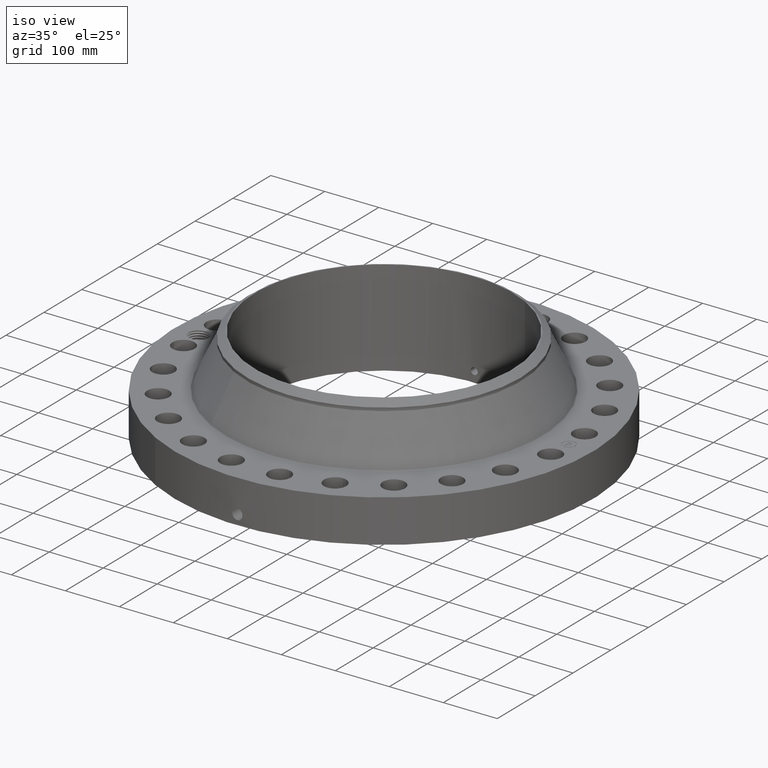
[diagram: clean part render]
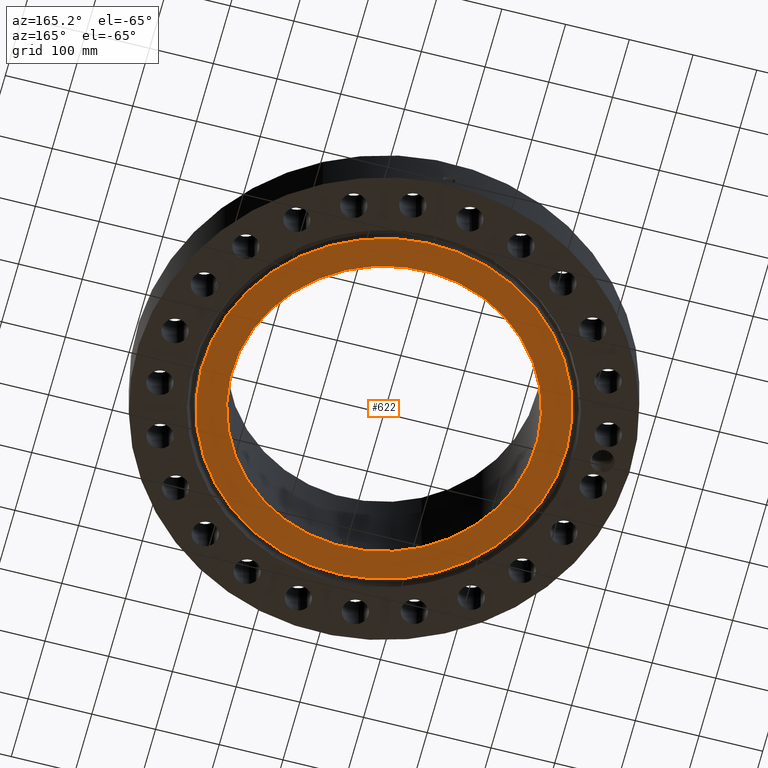
[diagram: tour spotlight — one face highlighted and labeled with its STEP entity id]
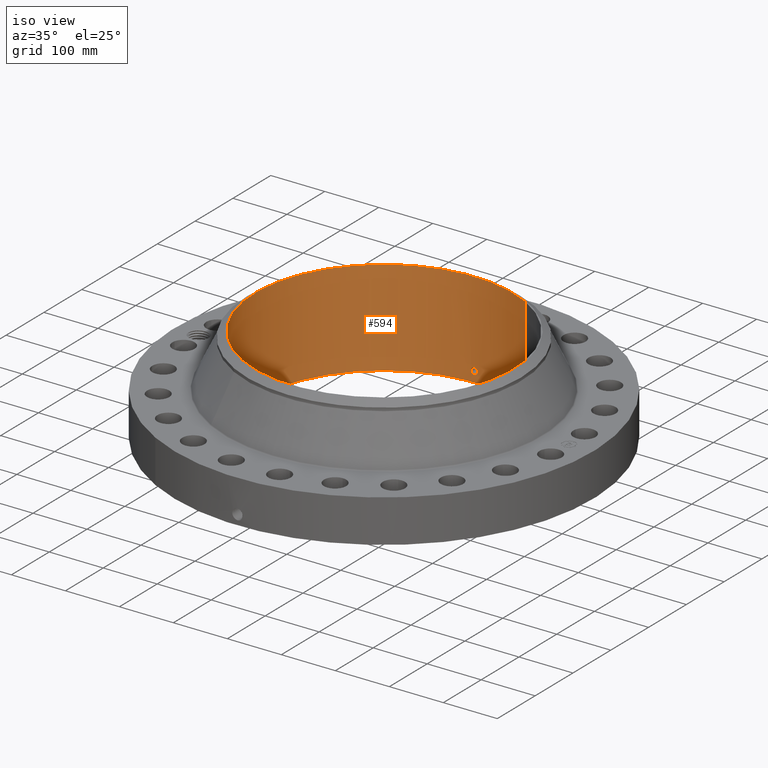
[diagram: tour spotlight — one face highlighted and labeled with its STEP entity id]
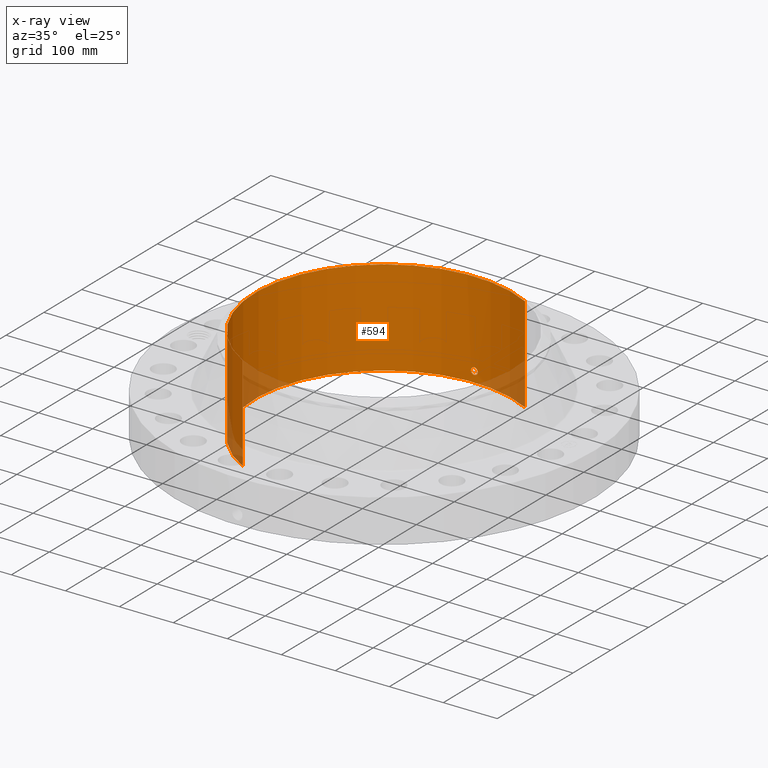
[diagram: x-ray of the same camera — body ghosted, this tour face saturated]
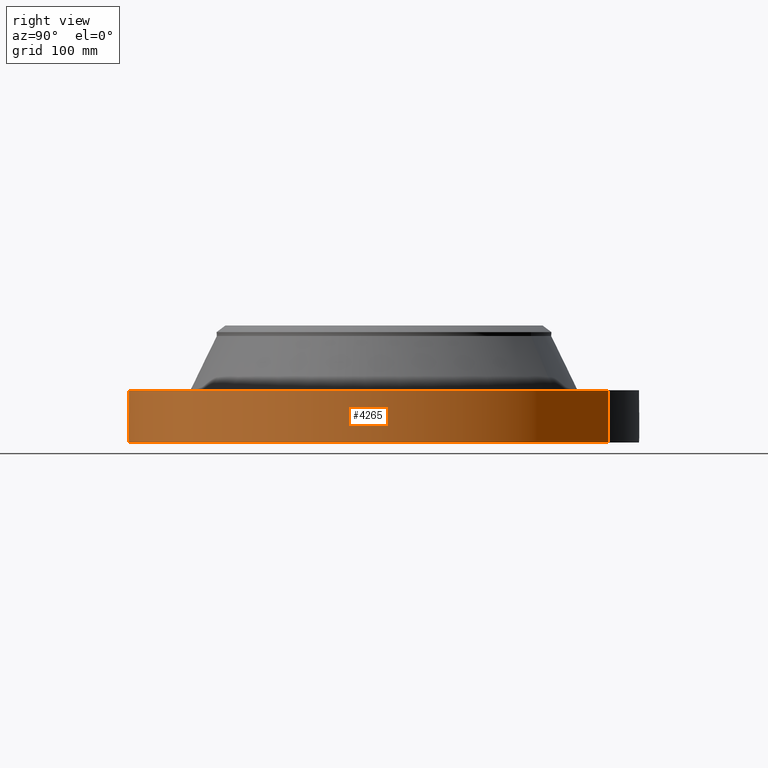
[diagram: tour spotlight — one face highlighted and labeled with its STEP entity id]
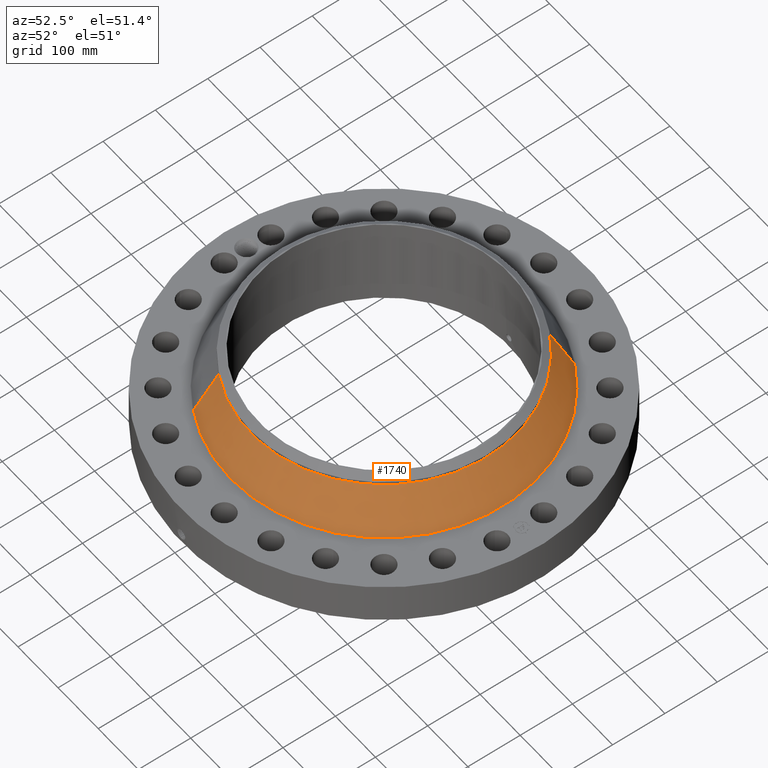
[diagram: tour spotlight — one face highlighted and labeled with its STEP entity id]
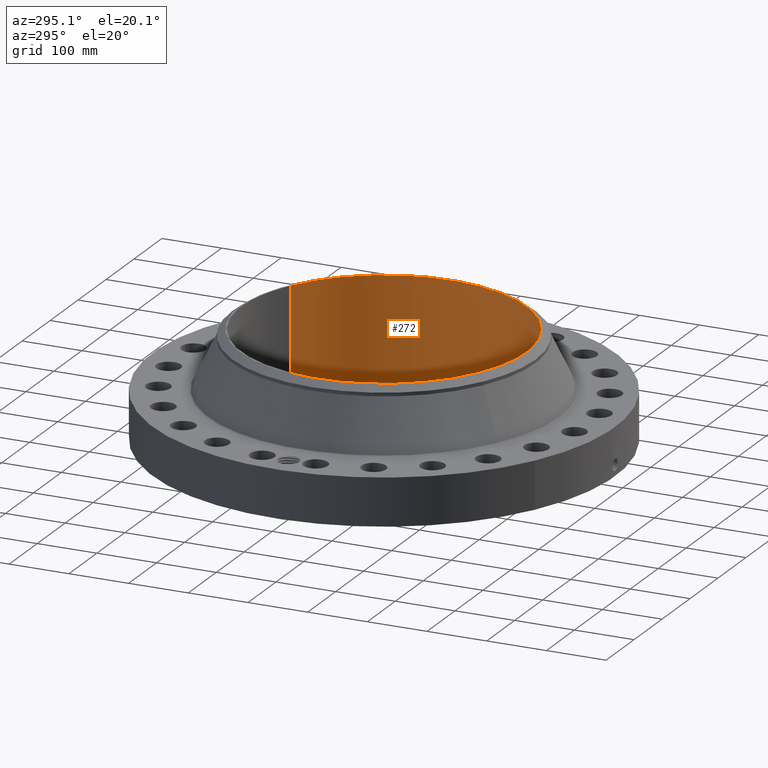
[diagram: tour spotlight — one face highlighted and labeled with its STEP entity id]
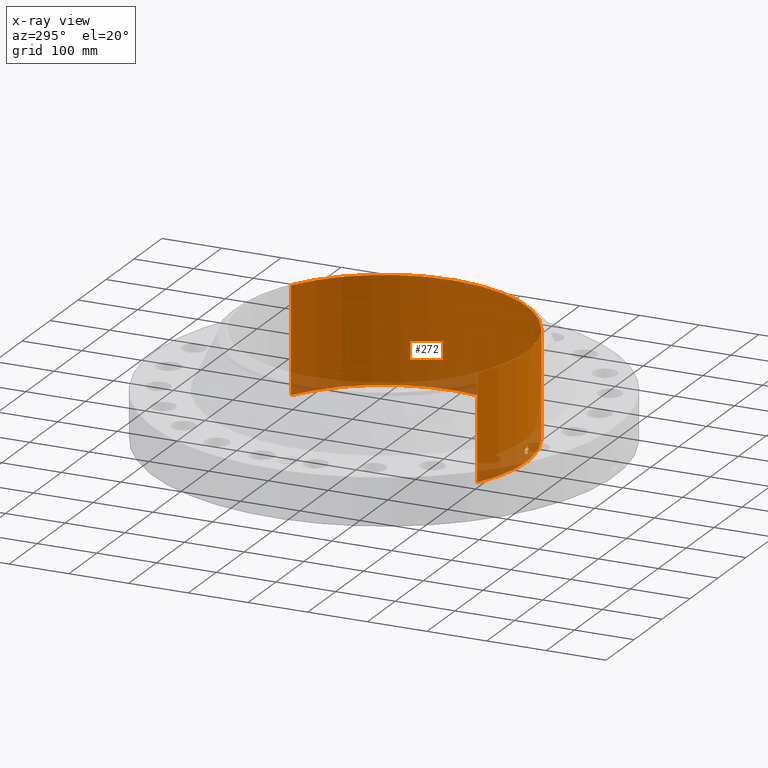
[diagram: x-ray of the same camera — body ghosted, this tour face saturated]
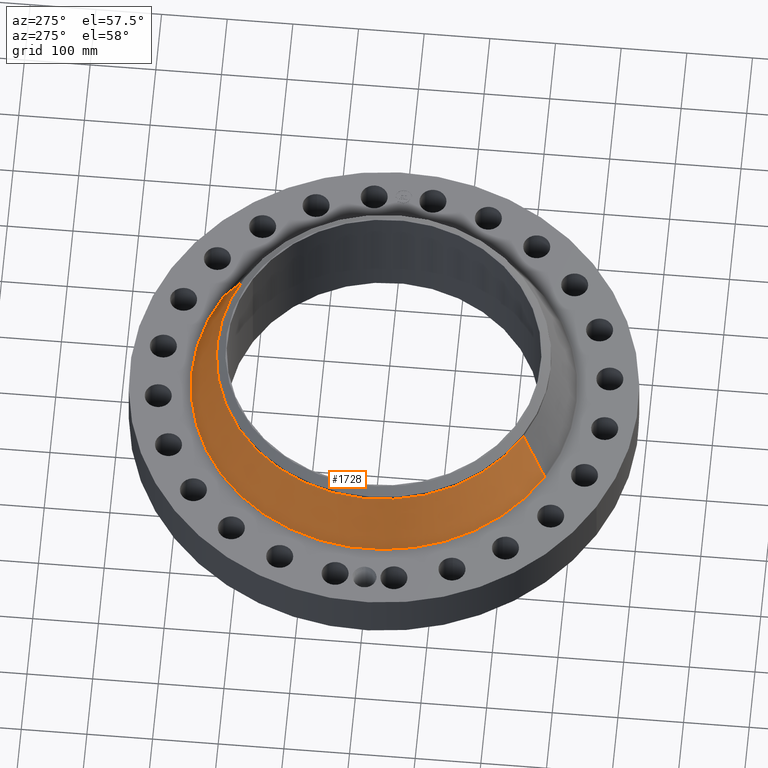
[diagram: tour spotlight — one face highlighted and labeled with its STEP entity id]
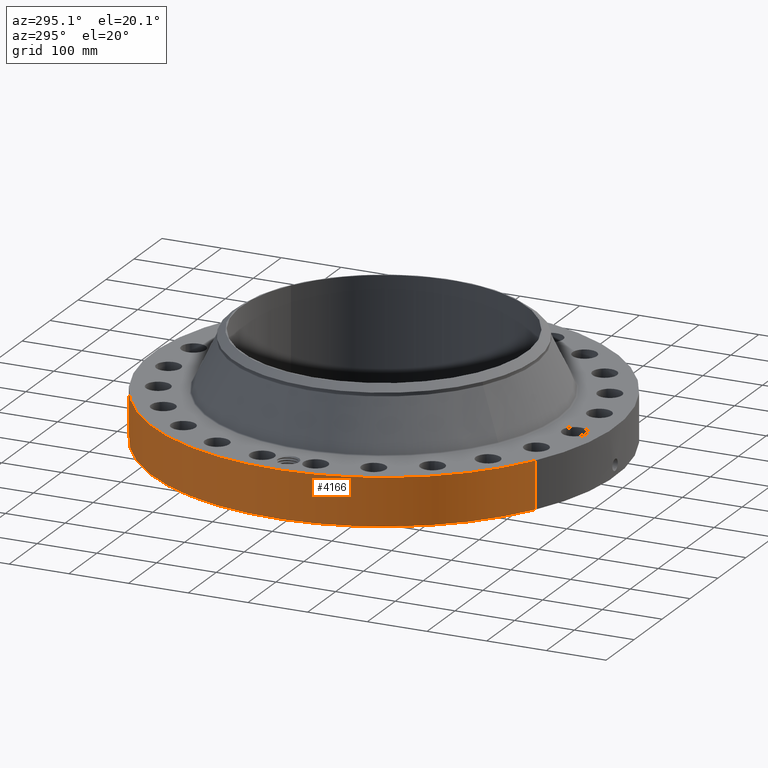
[diagram: tour spotlight — one face highlighted and labeled with its STEP entity id]
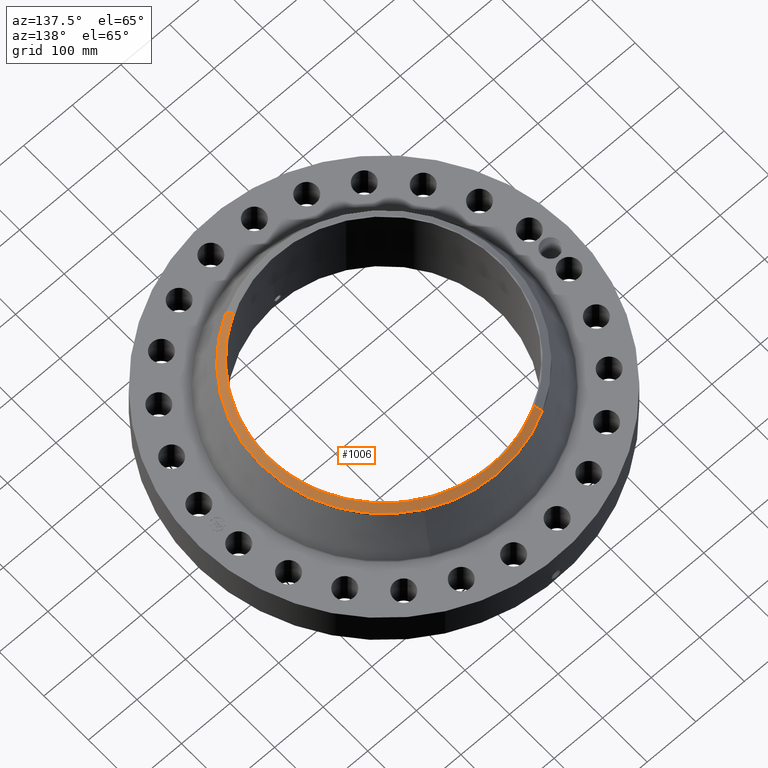
[diagram: tour spotlight — one face highlighted and labeled with its STEP entity id]
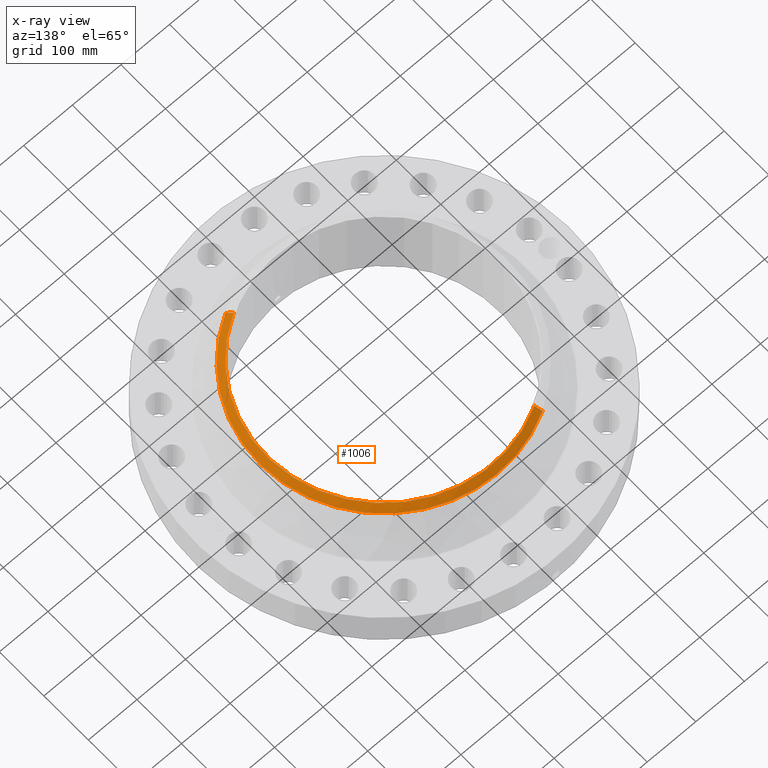
[diagram: x-ray of the same camera — body ghosted, this tour face saturated]
A machine part: a face-by-face anatomy tour. The part has 831 B-rep faces; the first image is the clean iso view, then the 8 largest visible faces are spotlighted one at a time (largest first), each with its STEP entity span.

Face 1 — auxiliary view, entity #622. In plain terms, the highlighted planar face has unit normal (0, 0, -1).
Definition (entity closure, byte-faithful):
#252=AXIS2_PLACEMENT_3D('Circle Axis2P3D',#250,#251,$) ;
#543=AXIS2_PLACEMENT_3D('Circle Axis2P3D',#541,#542,$) ;
#598=AXIS2_PLACEMENT_3D('Plane Axis2P3D',#595,#596,#597) ;
#602=AXIS2_PLACEMENT_3D('Circle Axis2P3D',#600,#601,$) ;
#611=AXIS2_PLACEMENT_3D('Circle Axis2P3D',#609,#610,$) ;
#247=CARTESIAN_POINT('Vertex',(4.50947661613,8.25454157717,-6.37810014777E-014)) ;
#250=CARTESIAN_POINT('Axis2P3D Location',(0.,0.,-6.37810014777E-014)) ;
#254=CARTESIAN_POINT('Vertex',(-4.50947661613,-8.25454157717,-6.37810014777E-014)) ;
#541=CARTESIAN_POINT('Axis2P3D Location',(0.,0.,-6.37810014777E-014)) ;
#595=CARTESIAN_POINT('Axis2P3D Location',(0.,9.40600000004,0.)) ;
#600=CARTESIAN_POINT('Axis2P3D Location',(1.1189649382E-015,-1.1189649382E-015,0.)) ;
#604=CARTESIAN_POINT('Vertex',(-5.38610621347,9.8592012916,3.40934629609E-016)) ;
#606=CARTESIAN_POINT('Vertex',(5.38610621347,-9.8592012916,0.)) ;
#609=CARTESIAN_POINT('Axis2P3D Location',(-3.35689481461E-015,2.23792987641E-015,0.)) ;
#251=DIRECTION('Axis2P3D Direction',(0.,0.,-0.0393700787402)) ;
#542=DIRECTION('Axis2P3D Direction',(0.,0.,-0.0393700787402)) ;
#596=DIRECTION('Axis2P3D Direction',(0.,0.,-0.0393700787402)) ;
#597=DIRECTION('Axis2P3D XDirection',(0.0393700787402,0.,0.)) ;
#601=DIRECTION('Axis2P3D Direction',(0.,0.,-0.0393700787402)) ;
#610=DIRECTION('Axis2P3D Direction',(0.,0.,-0.0393700787402)) ;
#615=ORIENTED_EDGE('',*,*,#608,.T.) ;
#616=ORIENTED_EDGE('',*,*,#613,.T.) ;
#619=ORIENTED_EDGE('',*,*,#256,.F.) ;
#620=ORIENTED_EDGE('',*,*,#545,.F.) ;
#621=FACE_BOUND('',#618,.T.) ;
#622=ADVANCED_FACE('PartBody',(#617,#621),#599,.T.) ;
#253=CIRCLE('generated circle',#252,9.40600000004) ;
#544=CIRCLE('generated circle',#543,9.40600000004) ;
#603=CIRCLE('generated circle',#602,11.2345) ;
#612=CIRCLE('generated circle',#611,11.2345) ;
#256=EDGE_CURVE('',#248,#255,#253,.T.) ;
#545=EDGE_CURVE('',#255,#248,#544,.T.) ;
#608=EDGE_CURVE('',#605,#607,#603,.T.) ;
#613=EDGE_CURVE('',#607,#605,#612,.T.) ;
#614=EDGE_LOOP('',(#615,#616)) ;
#618=EDGE_LOOP('',(#619,#620)) ;
#617=FACE_OUTER_BOUND('',#614,.T.) ;
#599=PLANE('',#598) ;
#248=VERTEX_POINT('',#247) ;
#255=VERTEX_POINT('',#254) ;
#605=VERTEX_POINT('',#604) ;
#607=VERTEX_POINT('',#606) ;

Face 2 — iso view, entity #594. An x-ray twin of the same camera follows (body ghosted, this face saturated) — the face is partly hidden behind the body. In plain terms, the highlighted cylindrical surface (partial cylindrical patch) has radius 238.912 mm, axis along (0, 0, -1).
Definition (entity closure, byte-faithful):
#232=AXIS2_PLACEMENT_3D('Cylinder Axis2P3D',#229,#230,#231) ;
#533=AXIS2_PLACEMENT_3D('Circle Axis2P3D',#531,#532,$) ;
#543=AXIS2_PLACEMENT_3D('Circle Axis2P3D',#541,#542,$) ;
#229=CARTESIAN_POINT('Axis2P3D Location',(0.,0.,3.49750000001)) ;
#238=CARTESIAN_POINT('Vertex',(4.50947661613,8.25454157717,6.99500000003)) ;
#240=CARTESIAN_POINT('Vertex',(-4.50947661613,-8.25454157717,6.99500000003)) ;
#243=CARTESIAN_POINT('Line Origine',(4.50947661613,8.25454157717,3.49750000001)) ;
#247=CARTESIAN_POINT('Vertex',(4.50947661613,8.25454157717,-6.37810014777E-014)) ;
#254=CARTESIAN_POINT('Vertex',(-4.50947661613,-8.25454157717,-6.37810014777E-014)) ;
#257=CARTESIAN_POINT('Line Origine',(-4.50947661613,-8.25454157717,3.49750000001)) ;
#531=CARTESIAN_POINT('Axis2P3D Location',(0.,0.,6.99500000003)) ;
#541=CARTESIAN_POINT('Axis2P3D Location',(0.,0.,-6.37810014777E-014)) ;
#553=CARTESIAN_POINT('Control Point',(0.219395640473,9.40344094221,0.869856384655)) ;
#554=CARTESIAN_POINT('Control Point',(0.194442950845,9.40402312392,0.915531976644)) ;
#555=CARTESIAN_POINT('Control Point',(0.157604939095,9.40479979489,0.954712022661)) ;
#556=CARTESIAN_POINT('Control Point',(0.111107152544,9.40555514884,0.983243448397)) ;
#557=CARTESIAN_POINT('Control Point',(0.033671999204,9.40615612692,1.00588278053)) ;
#558=CARTESIAN_POINT('Control Point',(-0.0446727871755,9.40594843691,0.998056138009)) ;
#559=CARTESIAN_POINT('Control Point',(-0.070303028828,9.40578720686,0.992043214285)) ;
#560=CARTESIAN_POINT('Control Point',(-0.143959762513,9.40507473366,0.964210069944)) ;
#561=CARTESIAN_POINT('Control Point',(-0.203247739357,9.40391180862,0.909493409667)) ;
#562=CARTESIAN_POINT('Control Point',(-0.232212291038,9.40314910317,0.863252787533)) ;
#563=CARTESIAN_POINT('Control Point',(-0.255840957987,9.40252216866,0.785106621996)) ;
#564=CARTESIAN_POINT('Control Point',(-0.248281986331,9.40272256495,0.705743459389)) ;
#565=CARTESIAN_POINT('Control Point',(-0.24204822864,9.40289022577,0.679182241915)) ;
#566=CARTESIAN_POINT('Control Point',(-0.232314986506,9.40313951551,0.653792319637)) ;
#567=CARTESIAN_POINT('Control Point',(-0.219395640473,9.40344094221,0.630143615351)) ;
#568=CARTESIAN_POINT('Vertex',(0.219395640473,9.40344094221,0.869856384655)) ;
#570=CARTESIAN_POINT('Vertex',(-0.219395640473,9.40344094221,0.630143615351)) ;
#574=CARTESIAN_POINT('Control Point',(-0.219395640473,9.40344094221,0.630143615351)) ;
#575=CARTESIAN_POINT('Control Point',(-0.194442950827,9.40402312392,0.58446802333)) ;
#576=CARTESIAN_POINT('Control Point',(-0.157604939042,9.40479979489,0.54528797729)) ;
#577=CARTESIAN_POINT('Control Point',(-0.111107152617,9.40555514884,0.516756551629)) ;
#578=CARTESIAN_POINT('Control Point',(-0.033671999241,9.40615612692,0.49411721947)) ;
#579=CARTESIAN_POINT('Control Point',(0.0446727871757,9.40594843691,0.501943861997)) ;
#580=CARTESIAN_POINT('Control Point',(0.0703030288279,9.40578720686,0.507956785721)) ;
#581=CARTESIAN_POINT('Control Point',(0.14395976258,9.40507473366,0.535789930088)) ;
#582=CARTESIAN_POINT('Control Point',(0.203247739466,9.40391180862,0.590506590439)) ;
#583=CARTESIAN_POINT('Control Point',(0.232212290996,9.40314910318,0.636747212332)) ;
#584=CARTESIAN_POINT('Control Point',(0.255840957994,9.40252216866,0.714893377936)) ;
#585=CARTESIAN_POINT('Control Point',(0.248281986332,9.40272256495,0.794256540614)) ;
#586=CARTESIAN_POINT('Control Point',(0.242048228639,9.40289022577,0.820817758094)) ;
#587=CARTESIAN_POINT('Control Point',(0.232314986505,9.40313951551,0.846207680371)) ;
#588=CARTESIAN_POINT('Control Point',(0.219395640473,9.40344094221,0.869856384655)) ;
#230=DIRECTION('Axis2P3D Direction',(0.,0.,-0.0393700787402)) ;
#231=DIRECTION('Axis2P3D XDirection',(-0.0188750212049,-0.0345504945626,0.)) ;
#244=DIRECTION('Vector Direction',(0.,0.,-0.0393700787402)) ;
#258=DIRECTION('Vector Direction',(0.,0.,-0.0393700787402)) ;
#532=DIRECTION('Axis2P3D Direction',(0.,0.,-0.0393700787402)) ;
#542=DIRECTION('Axis2P3D Direction',(0.,0.,-0.0393700787402)) ;
#245=VECTOR('Line Direction',#244,0.0393700787402) ;
#259=VECTOR('Line Direction',#258,0.0393700787402) ;
#547=ORIENTED_EDGE('',*,*,#535,.F.) ;
#548=ORIENTED_EDGE('',*,*,#261,.T.) ;
#549=ORIENTED_EDGE('',*,*,#545,.T.) ;
#550=ORIENTED_EDGE('',*,*,#249,.F.) ;
#591=ORIENTED_EDGE('',*,*,#572,.F.) ;
#592=ORIENTED_EDGE('',*,*,#589,.F.) ;
#593=FACE_BOUND('',#590,.T.) ;
#594=ADVANCED_FACE('PartBody',(#551,#593),#233,.F.) ;
#552=B_SPLINE_CURVE_WITH_KNOTS('',5,(#553,#554,#555,#556,#557,#558,#559,#560,#561,#562,#563,#564,#565,#566,#567),.UNSPECIFIED.,.F.,.U.,(6,3,3,3,6),(0.,9.34850331358,14.0229096918,23.3729493922,28.2131710674),.UNSPECIFIED.) ;
#573=B_SPLINE_CURVE_WITH_KNOTS('',5,(#574,#575,#576,#577,#578,#579,#580,#581,#582,#583,#584,#585,#586,#587,#588),.UNSPECIFIED.,.F.,.U.,(6,3,3,3,6),(0.,9.3485033202,14.0229096984,23.3729494117,28.2131710867),.UNSPECIFIED.) ;
#534=CIRCLE('generated circle',#533,9.40600000004) ;
#544=CIRCLE('generated circle',#543,9.40600000004) ;
#233=CYLINDRICAL_SURFACE('generated cylinder',#232,9.40600000004) ;
#249=EDGE_CURVE('',#239,#248,#246,.T.) ;
#261=EDGE_CURVE('',#241,#255,#260,.T.) ;
#535=EDGE_CURVE('',#241,#239,#534,.T.) ;
#545=EDGE_CURVE('',#255,#248,#544,.T.) ;
#572=EDGE_CURVE('',#569,#571,#552,.T.) ;
#589=EDGE_CURVE('',#571,#569,#573,.T.) ;
#546=EDGE_LOOP('',(#547,#548,#549,#550)) ;
#590=EDGE_LOOP('',(#591,#592)) ;
#551=FACE_OUTER_BOUND('',#546,.T.) ;
#246=LINE('Line',#243,#245) ;
#260=LINE('Line',#257,#259) ;
#239=VERTEX_POINT('',#238) ;
#241=VERTEX_POINT('',#240) ;
#248=VERTEX_POINT('',#247) ;
#255=VERTEX_POINT('',#254) ;
#569=VERTEX_POINT('',#568) ;
#571=VERTEX_POINT('',#570) ;

Face 3 — right view, entity #4265. In plain terms, the highlighted cylindrical surface (partial cylindrical patch) has radius 387.35 mm, axis along (0, 0, -1).
Definition (entity closure, byte-faithful):
#2918=AXIS2_PLACEMENT_3D('Circle Axis2P3D',#2916,#2917,$) ;
#4052=AXIS2_PLACEMENT_3D('Cylinder Axis2P3D',#4049,#4050,#4051) ;
#4169=AXIS2_PLACEMENT_3D('Circle Axis2P3D',#4167,#4168,$) ;
#2916=CARTESIAN_POINT('Axis2P3D Location',(0.,0.,3.12500000001)) ;
#2920=CARTESIAN_POINT('Vertex',(7.31123946374,13.3831340689,3.12500000001)) ;
#2922=CARTESIAN_POINT('Vertex',(-7.31123946374,-13.3831340689,3.12500000001)) ;
#4049=CARTESIAN_POINT('Axis2P3D Location',(0.,0.,3.49750000001)) ;
#4058=CARTESIAN_POINT('Vertex',(-7.31123946374,-13.3831340689,1.67844740731E-015)) ;
#4060=CARTESIAN_POINT('Vertex',(7.31123946374,13.3831340689,1.67844740731E-015)) ;
#4063=CARTESIAN_POINT('Line Origine',(-7.31123946374,-13.3831340689,1.56250000001)) ;
#4068=CARTESIAN_POINT('Line Origine',(7.31123946374,13.3831340689,1.56250000001)) ;
#4167=CARTESIAN_POINT('Axis2P3D Location',(0.,0.,1.67844740731E-015)) ;
#4179=CARTESIAN_POINT('Control Point',(0.00071604894553,-15.2499999833,1.10411846129)) ;
#4180=CARTESIAN_POINT('Control Point',(0.0189700498048,-15.2499991262,1.10408159453)) ;
#4181=CARTESIAN_POINT('Control Point',(0.0372208610756,-15.2499652357,1.10262937582)) ;
#4182=CARTESIAN_POINT('Control Point',(0.0552507713435,-15.2498999129,1.09977930477)) ;
#4183=CARTESIAN_POINT('Vertex',(0.000715696379584,-15.2499999833,1.10411851056)) ;
#4185=CARTESIAN_POINT('Vertex',(0.0552419730431,-15.249900197,1.09978071368)) ;
#4189=CARTESIAN_POINT('Control Point',(0.0552418779669,-15.2498999451,1.09978016677)) ;
#4190=CARTESIAN_POINT('Control Point',(0.0956980511637,-15.249753395,1.09536272165)) ;
#4191=CARTESIAN_POINT('Control Point',(0.135516472801,-15.249441984,1.08358726771)) ;
#4192=CARTESIAN_POINT('Control Point',(0.172195687342,-15.2490277935,1.06523274047)) ;
#4193=CARTESIAN_POINT('Vertex',(0.172195687342,-15.2490277935,1.06523274047)) ;
#4197=CARTESIAN_POINT('Control Point',(0.0310152955329,-15.2499684607,0.341189291004)) ;
#4198=CARTESIAN_POINT('Control Point',(0.0961823791785,-15.2498359243,0.349436742326)) ;
#4199=CARTESIAN_POINT('Control Point',(0.159294070846,-15.2493594718,0.371293742742)) ;
#4200=CARTESIAN_POINT('Control Point',(0.216401166269,-15.248588709,0.406098803563)) ;
#4201=CARTESIAN_POINT('Control Point',(0.28881978694,-15.2473275342,0.474189951425)) ;
#4202=CARTESIAN_POINT('Control Point',(0.336428397381,-15.246299475,0.558671465484)) ;
#4203=CARTESIAN_POINT('Control Point',(0.349472608004,-15.2460004618,0.588732973214)) ;
#4204=CARTESIAN_POINT('Control Point',(0.371687709811,-15.2454753167,0.65897082337)) ;
#4205=CARTESIAN_POINT('Control Point',(0.377175371762,-15.2453335919,0.732141211882)) ;
#4206=CARTESIAN_POINT('Control Point',(0.374910276706,-15.2453911794,0.772947961886)) ;
#4207=CARTESIAN_POINT('Control Point',(0.356496007141,-15.2458512497,0.87072433444)) ;
#4208=CARTESIAN_POINT('Control Point',(0.308136761356,-15.2469313737,0.957943273364)) ;
#4209=CARTESIAN_POINT('Control Point',(0.269818060747,-15.2477093275,1.00323966125)) ;
#4210=CARTESIAN_POINT('Control Point',(0.223535755257,-15.2484480491,1.03954181883)) ;
#4211=CARTESIAN_POINT('Control Point',(0.172195687342,-15.2490277935,1.06523274047)) ;
#4212=CARTESIAN_POINT('Vertex',(0.0310152955329,-15.2499684607,0.341189291004)) ;
#4216=CARTESIAN_POINT('Control Point',(0.0310152955329,-15.2499684607,0.341189291004)) ;
#4217=CARTESIAN_POINT('Control Point',(0.0206719970494,-15.2499894969,0.340874570362)) ;
#4218=CARTESIAN_POINT('Control Point',(0.0103211280085,-15.2500000019,0.340936539162)) ;
#4219=CARTESIAN_POINT('Control Point',(-2.72878354802E-006,-15.2500000001,0.341374667805)) ;
#4220=CARTESIAN_POINT('Vertex',(-2.72878354212E-006,-15.2500000001,0.341374667805)) ;
#4224=CARTESIAN_POINT('Control Point',(-0.192625061438,-15.2487834134,0.397413269239)) ;
#4225=CARTESIAN_POINT('Control Point',(-0.149005457479,-15.2493344231,0.372040395925)) ;
#4226=CARTESIAN_POINT('Control Point',(-0.101116385112,-15.2497737091,0.35377986482)) ;
#4227=CARTESIAN_POINT('Control Point',(-0.0508056148719,-15.249999991,0.343530662196)) ;
#4228=CARTESIAN_POINT('Control Point',(-2.72878354801E-006,-15.2500000001,0.341374667805)) ;
#4229=CARTESIAN_POINT('Vertex',(-0.192625061438,-15.2487834134,0.397413269239)) ;
#4233=CARTESIAN_POINT('Control Point',(-0.192625061438,-15.2487834134,0.397413269239)) ;
#4234=CARTESIAN_POINT('Control Point',(-0.249453805344,-15.2480655436,0.430469701727)) ;
#4235=CARTESIAN_POINT('Control Point',(-0.299509285804,-15.2471684578,0.474842708875)) ;
#4236=CARTESIAN_POINT('Control Point',(-0.339646008743,-15.2462572491,0.528972975938)) ;
#4237=CARTESIAN_POINT('Control Point',(-0.383846960555,-15.2451782379,0.627171372484)) ;
#4238=CARTESIAN_POINT('Control Point',(-0.392394974183,-15.2449495017,0.73245654398)) ;
#4239=CARTESIAN_POINT('Control Point',(-0.390268284308,-15.245005748,0.772621208128)) ;
#4240=CARTESIAN_POINT('Control Point',(-0.376095202203,-15.2453740947,0.847526035632)) ;
#4241=CARTESIAN_POINT('Control Point',(-0.343961356268,-15.2461332341,0.915956528825)) ;
#4242=CARTESIAN_POINT('Control Point',(-0.324884417103,-15.2465612266,0.94637825746)) ;
#4243=CARTESIAN_POINT('Control Point',(-0.263166902041,-15.2478271679,1.02273613886)) ;
#4244=CARTESIAN_POINT('Control Point',(-0.18008194909,-15.2490857237,1.07567042785)) ;
#4245=CARTESIAN_POINT('Control Point',(-0.121354926251,-15.2497029243,1.09768573553)) ;
#4246=CARTESIAN_POINT('Control Point',(-0.0601973490777,-15.2500001022,1.10710564637)) ;
#4247=CARTESIAN_POINT('Control Point',(2.58579355456E-005,-15.25,1.1041529843)) ;
#4248=CARTESIAN_POINT('Vertex',(2.58579355465E-005,-15.25,1.1041529843)) ;
#4252=CARTESIAN_POINT('Control Point',(0.000715696369973,-15.2499999833,1.10411851054)) ;
#4253=CARTESIAN_POINT('Control Point',(0.000370801697565,-15.2499999995,1.10413607216)) ;
#4254=CARTESIAN_POINT('Control Point',(2.58579405819E-005,-15.25,1.1041529843)) ;
#2917=DIRECTION('Axis2P3D Direction',(0.,0.,-0.0393700787402)) ;
#4050=DIRECTION('Axis2P3D Direction',(0.,0.,-0.0393700787402)) ;
#4051=DIRECTION('Axis2P3D XDirection',(0.0188750212049,0.0345504945626,0.)) ;
#4064=DIRECTION('Vector Direction',(0.,0.,-0.0393700787402)) ;
#4069=DIRECTION('Vector Direction',(0.,0.,-0.0393700787402)) ;
#4168=DIRECTION('Axis2P3D Direction',(0.,0.,-0.0393700787402)) ;
#4065=VECTOR('Line Direction',#4064,0.0393700787402) ;
#4070=VECTOR('Line Direction',#4069,0.0393700787402) ;
#4173=ORIENTED_EDGE('',*,*,#4171,.F.) ;
#4174=ORIENTED_EDGE('',*,*,#4072,.T.) ;
#4175=ORIENTED_EDGE('',*,*,#2924,.T.) ;
#4176=ORIENTED_EDGE('',*,*,#4067,.F.) ;
#4257=ORIENTED_EDGE('',*,*,#4187,.T.) ;
#4258=ORIENTED_EDGE('',*,*,#4195,.T.) ;
#4259=ORIENTED_EDGE('',*,*,#4214,.F.) ;
#4260=ORIENTED_EDGE('',*,*,#4222,.T.) ;
#4261=ORIENTED_EDGE('',*,*,#4231,.F.) ;
#4262=ORIENTED_EDGE('',*,*,#4250,.T.) ;
#4263=ORIENTED_EDGE('',*,*,#4255,.F.) ;
#4264=FACE_BOUND('',#4256,.T.) ;
#4265=ADVANCED_FACE('PartBody',(#4177,#4264),#4053,.T.) ;
#4178=B_SPLINE_CURVE_WITH_KNOTS('',3,(#4179,#4180,#4181,#4182),.UNSPECIFIED.,.F.,.U.,(4,4),(34.6166020271,36.6417101581),.UNSPECIFIED.) ;
#4188=B_SPLINE_CURVE_WITH_KNOTS('',3,(#4189,#4190,#4191,#4192),.UNSPECIFIED.,.F.,.U.,(4,4),(0.,4.57283674018),.UNSPECIFIED.) ;
#4196=B_SPLINE_CURVE_WITH_KNOTS('',5,(#4197,#4198,#4199,#4200,#4201,#4202,#4203,#4204,#4205,#4206,#4207,#4208,#4209,#4210,#4211),.UNSPECIFIED.,.F.,.U.,(6,3,3,3,6),(0.,11.4156338508,17.256390985,24.6134540458,35.2811559529),.UNSPECIFIED.) ;
#4215=B_SPLINE_CURVE_WITH_KNOTS('',3,(#4216,#4217,#4218,#4219),.UNSPECIFIED.,.F.,.U.,(4,4),(0.,1.078963782),.UNSPECIFIED.) ;
#4223=B_SPLINE_CURVE_WITH_KNOTS('',4,(#4224,#4225,#4226,#4227,#4228),.UNSPECIFIED.,.F.,.U.,(5,5),(0.,7.07932769333),.UNSPECIFIED.) ;
#4232=B_SPLINE_CURVE_WITH_KNOTS('',5,(#4233,#4234,#4235,#4236,#4237,#4238,#4239,#4240,#4241,#4242,#4243,#4244,#4245,#4246,#4247),.UNSPECIFIED.,.F.,.U.,(6,3,3,3,6),(0.,11.5289130954,18.6079913198,25.0299992082,36.2869665735),.UNSPECIFIED.) ;
#4251=B_SPLINE_CURVE_WITH_KNOTS('',2,(#4252,#4253,#4254),.UNSPECIFIED.,.F.,.U.,(3,3),(1.02181010311,1.04760096341),.UNSPECIFIED.) ;
#2919=CIRCLE('generated circle',#2918,15.2500000001) ;
#4170=CIRCLE('generated circle',#4169,15.2500000001) ;
#4053=CYLINDRICAL_SURFACE('generated cylinder',#4052,15.2500000001) ;
#2924=EDGE_CURVE('',#2921,#2923,#2919,.T.) ;
#4067=EDGE_CURVE('',#4059,#2923,#4066,.F.) ;
#4072=EDGE_CURVE('',#4061,#2921,#4071,.F.) ;
#4171=EDGE_CURVE('',#4061,#4059,#4170,.T.) ;
#4187=EDGE_CURVE('',#4184,#4186,#4178,.T.) ;
#4195=EDGE_CURVE('',#4186,#4194,#4188,.T.) ;
#4214=EDGE_CURVE('',#4213,#4194,#4196,.T.) ;
#4222=EDGE_CURVE('',#4213,#4221,#4215,.T.) ;
#4231=EDGE_CURVE('',#4230,#4221,#4223,.T.) ;
#4250=EDGE_CURVE('',#4230,#4249,#4232,.T.) ;
#4255=EDGE_CURVE('',#4184,#4249,#4251,.T.) ;
#4172=EDGE_LOOP('',(#4173,#4174,#4175,#4176)) ;
#4256=EDGE_LOOP('',(#4257,#4258,#4259,#4260,#4261,#4262,#4263)) ;
#4177=FACE_OUTER_BOUND('',#4172,.T.) ;
#4066=LINE('Line',#4063,#4065) ;
#4071=LINE('Line',#4068,#4070) ;
#2921=VERTEX_POINT('',#2920) ;
#2923=VERTEX_POINT('',#2922) ;
#4059=VERTEX_POINT('',#4058) ;
#4061=VERTEX_POINT('',#4060) ;
#4184=VERTEX_POINT('',#4183) ;
#4186=VERTEX_POINT('',#4185) ;
#4194=VERTEX_POINT('',#4193) ;
#4213=VERTEX_POINT('',#4212) ;
#4221=VERTEX_POINT('',#4220) ;
#4230=VERTEX_POINT('',#4229) ;
#4249=VERTEX_POINT('',#4248) ;

Face 4 — auxiliary view, entity #1740. In plain terms, the highlighted conical surface has half-angle 25.721 deg.
Definition (entity closure, byte-faithful):
#1364=AXIS2_PLACEMENT_3D('Circle Axis2P3D',#1362,#1363,$) ;
#1701=AXIS2_PLACEMENT_3D('Cone Axis2P3D',#1698,#1699,#1700) ;
#1731=AXIS2_PLACEMENT_3D('Circle Axis2P3D',#1729,#1730,$) ;
#1339=CARTESIAN_POINT('Vertex',(4.79425538606,8.77582561894,6.3634067446)) ;
#1346=CARTESIAN_POINT('Vertex',(-4.79425538606,-8.77582561894,6.3634067446)) ;
#1362=CARTESIAN_POINT('Axis2P3D Location',(0.,0.,6.3634067446)) ;
#1698=CARTESIAN_POINT('Axis2P3D Location',(0.,0.,6.3634067446)) ;
#1707=CARTESIAN_POINT('Vertex',(-5.52647292352,-10.1161408309,3.19292133687)) ;
#1709=CARTESIAN_POINT('Vertex',(5.52647292352,10.1161408309,3.19292133687)) ;
#1712=CARTESIAN_POINT('Line Origine',(-5.16036415479,-9.44598322491,4.77816404073)) ;
#1717=CARTESIAN_POINT('Line Origine',(5.16036415479,9.44598322491,4.77816404073)) ;
#1729=CARTESIAN_POINT('Axis2P3D Location',(0.,0.,3.19292133687)) ;
#1363=DIRECTION('Axis2P3D Direction',(0.,0.,-0.0393700787402)) ;
#1699=DIRECTION('Axis2P3D Direction',(0.,0.,-0.0393700787402)) ;
#1700=DIRECTION('Axis2P3D XDirection',(0.0188750212049,0.0345504945626,0.)) ;
#1713=DIRECTION('Vector Direction',(-0.00819154892625,-0.0149945297313,-0.0354692219302)) ;
#1718=DIRECTION('Vector Direction',(0.00819154892625,0.0149945297313,-0.0354692219302)) ;
#1730=DIRECTION('Axis2P3D Direction',(0.,0.,-0.0393700787402)) ;
#1714=VECTOR('Line Direction',#1713,0.0393700787402) ;
#1719=VECTOR('Line Direction',#1718,0.0393700787402) ;
#1735=ORIENTED_EDGE('',*,*,#1733,.F.) ;
#1736=ORIENTED_EDGE('',*,*,#1721,.T.) ;
#1737=ORIENTED_EDGE('',*,*,#1366,.T.) ;
#1738=ORIENTED_EDGE('',*,*,#1716,.F.) ;
#1740=ADVANCED_FACE('PartBody',(#1739),#1702,.T.) ;
#1365=CIRCLE('generated circle',#1364,10.) ;
#1732=CIRCLE('generated circle',#1731,11.5272810448) ;
#1702=CONICAL_SURFACE('Cone',#1701,10.,0.448915628643) ;
#1366=EDGE_CURVE('',#1340,#1347,#1365,.T.) ;
#1716=EDGE_CURVE('',#1708,#1347,#1715,.F.) ;
#1721=EDGE_CURVE('',#1710,#1340,#1720,.F.) ;
#1733=EDGE_CURVE('',#1710,#1708,#1732,.T.) ;
#1734=EDGE_LOOP('',(#1735,#1736,#1737,#1738)) ;
#1739=FACE_OUTER_BOUND('',#1734,.T.) ;
#1715=LINE('Line',#1712,#1714) ;
#1720=LINE('Line',#1717,#1719) ;
#1340=VERTEX_POINT('',#1339) ;
#1347=VERTEX_POINT('',#1346) ;
#1708=VERTEX_POINT('',#1707) ;
#1710=VERTEX_POINT('',#1709) ;

Face 5 — auxiliary view, entity #272. An x-ray twin of the same camera follows (body ghosted, this face saturated) — the face is partly hidden behind the body. In plain terms, the highlighted cylindrical surface (partial cylindrical patch) has radius 238.912 mm, axis along (0, 0, -1).
Definition (entity closure, byte-faithful):
#232=AXIS2_PLACEMENT_3D('Cylinder Axis2P3D',#229,#230,#231) ;
#236=AXIS2_PLACEMENT_3D('Circle Axis2P3D',#234,#235,$) ;
#252=AXIS2_PLACEMENT_3D('Circle Axis2P3D',#250,#251,$) ;
#81=CARTESIAN_POINT('Control Point',(0.219395640473,-9.40344094221,0.630143615351)) ;
#82=CARTESIAN_POINT('Control Point',(0.194442950831,-9.40402312392,0.584468023338)) ;
#83=CARTESIAN_POINT('Control Point',(0.157604902847,-9.40479979321,0.545287911138)) ;
#84=CARTESIAN_POINT('Control Point',(0.111107077264,-9.40555514872,0.516756549372)) ;
#85=CARTESIAN_POINT('Control Point',(0.0336720368992,-9.40615612698,0.494117220596)) ;
#86=CARTESIAN_POINT('Control Point',(-0.0446728060132,-9.40594843688,0.501943861434)) ;
#87=CARTESIAN_POINT('Control Point',(-0.0703030454497,-9.40578720728,0.507956794611)) ;
#88=CARTESIAN_POINT('Control Point',(-0.14395972929,-9.40507473283,0.53578991229)) ;
#89=CARTESIAN_POINT('Control Point',(-0.203247805903,-9.40391181029,0.590506625946)) ;
#90=CARTESIAN_POINT('Control Point',(-0.232212293971,-9.40314910333,0.636747287811)) ;
#91=CARTESIAN_POINT('Control Point',(-0.255840956458,-9.40252216858,0.714893338936)) ;
#92=CARTESIAN_POINT('Control Point',(-0.248281987125,-9.40272256499,0.794256560779)) ;
#93=CARTESIAN_POINT('Control Point',(-0.242048238331,-9.40289022622,0.820817740394)) ;
#94=CARTESIAN_POINT('Control Point',(-0.232314986496,-9.40313951551,0.846207680388)) ;
#95=CARTESIAN_POINT('Control Point',(-0.219395640473,-9.40344094221,0.869856384655)) ;
#96=CARTESIAN_POINT('Vertex',(0.219395640473,-9.40344094221,0.630143615351)) ;
#98=CARTESIAN_POINT('Vertex',(-0.219395640473,-9.40344094221,0.869856384655)) ;
#206=CARTESIAN_POINT('Control Point',(-0.219395640473,-9.40344094221,0.869856384655)) ;
#207=CARTESIAN_POINT('Control Point',(-0.19444295085,-9.40402312392,0.915531976635)) ;
#208=CARTESIAN_POINT('Control Point',(-0.157604902901,-9.40479979321,0.954712088811)) ;
#209=CARTESIAN_POINT('Control Point',(-0.111107077191,-9.40555514873,0.983243450655)) ;
#210=CARTESIAN_POINT('Control Point',(-0.0336720368685,-9.40615612698,1.0058827794)) ;
#211=CARTESIAN_POINT('Control Point',(0.0446728060008,-9.40594843688,0.998056138573)) ;
#212=CARTESIAN_POINT('Control Point',(0.0703030454555,-9.40578720728,0.992043205393)) ;
#213=CARTESIAN_POINT('Control Point',(0.143959729292,-9.40507473283,0.964210087714)) ;
#214=CARTESIAN_POINT('Control Point',(0.203247805903,-9.40391181029,0.909493374062)) ;
#215=CARTESIAN_POINT('Control Point',(0.232212293969,-9.40314910333,0.8632527122)) ;
#216=CARTESIAN_POINT('Control Point',(0.255840956457,-9.40252216858,0.785106661073)) ;
#217=CARTESIAN_POINT('Control Point',(0.248281987126,-9.40272256499,0.70574343923)) ;
#218=CARTESIAN_POINT('Control Point',(0.242048238331,-9.40289022622,0.679182259612)) ;
#219=CARTESIAN_POINT('Control Point',(0.232314986496,-9.40313951551,0.653792319618)) ;
#220=CARTESIAN_POINT('Control Point',(0.219395640473,-9.40344094221,0.630143615351)) ;
#229=CARTESIAN_POINT('Axis2P3D Location',(0.,0.,3.49750000001)) ;
#234=CARTESIAN_POINT('Axis2P3D Location',(0.,0.,6.99500000003)) ;
#238=CARTESIAN_POINT('Vertex',(4.50947661613,8.25454157717,6.99500000003)) ;
#240=CARTESIAN_POINT('Vertex',(-4.50947661613,-8.25454157717,6.99500000003)) ;
#243=CARTESIAN_POINT('Line Origine',(4.50947661613,8.25454157717,3.49750000001)) ;
#247=CARTESIAN_POINT('Vertex',(4.50947661613,8.25454157717,-6.37810014777E-014)) ;
#250=CARTESIAN_POINT('Axis2P3D Location',(0.,0.,-6.37810014777E-014)) ;
#254=CARTESIAN_POINT('Vertex',(-4.50947661613,-8.25454157717,-6.37810014777E-014)) ;
#257=CARTESIAN_POINT('Line Origine',(-4.50947661613,-8.25454157717,3.49750000001)) ;
#230=DIRECTION('Axis2P3D Direction',(0.,0.,-0.0393700787402)) ;
#231=DIRECTION('Axis2P3D XDirection',(-0.0188750212049,-0.0345504945626,0.)) ;
#235=DIRECTION('Axis2P3D Direction',(0.,0.,-0.0393700787402)) ;
#244=DIRECTION('Vector Direction',(0.,0.,-0.0393700787402)) ;
#251=DIRECTION('Axis2P3D Direction',(0.,0.,-0.0393700787402)) ;
#258=DIRECTION('Vector Direction',(0.,0.,-0.0393700787402)) ;
#245=VECTOR('Line Direction',#244,0.0393700787402) ;
#259=VECTOR('Line Direction',#258,0.0393700787402) ;
#263=ORIENTED_EDGE('',*,*,#242,.F.) ;
#264=ORIENTED_EDGE('',*,*,#249,.T.) ;
#265=ORIENTED_EDGE('',*,*,#256,.T.) ;
#266=ORIENTED_EDGE('',*,*,#261,.F.) ;
#269=ORIENTED_EDGE('',*,*,#100,.F.) ;
#270=ORIENTED_EDGE('',*,*,#221,.F.) ;
#271=FACE_BOUND('',#268,.T.) ;
#272=ADVANCED_FACE('PartBody',(#267,#271),#233,.F.) ;
#80=B_SPLINE_CURVE_WITH_KNOTS('',5,(#81,#82,#83,#84,#85,#86,#87,#88,#89,#90,#91,#92,#93,#94,#95),.UNSPECIFIED.,.F.,.U.,(6,3,3,3,6),(0.,9.34850331866,14.022909697,23.3729494023,28.2131710736),.UNSPECIFIED.) ;
#205=B_SPLINE_CURVE_WITH_KNOTS('',5,(#206,#207,#208,#209,#210,#211,#212,#213,#214,#215,#216,#217,#218,#219,#220),.UNSPECIFIED.,.F.,.U.,(6,3,3,3,6),(0.,9.34850331178,14.0229096893,23.3729493947,28.2131710661),.UNSPECIFIED.) ;
#237=CIRCLE('generated circle',#236,9.40600000004) ;
#253=CIRCLE('generated circle',#252,9.40600000004) ;
#233=CYLINDRICAL_SURFACE('generated cylinder',#232,9.40600000004) ;
#100=EDGE_CURVE('',#97,#99,#80,.T.) ;
#221=EDGE_CURVE('',#99,#97,#205,.T.) ;
#242=EDGE_CURVE('',#239,#241,#237,.T.) ;
#249=EDGE_CURVE('',#239,#248,#246,.T.) ;
#256=EDGE_CURVE('',#248,#255,#253,.T.) ;
#261=EDGE_CURVE('',#241,#255,#260,.T.) ;
#262=EDGE_LOOP('',(#263,#264,#265,#266)) ;
#268=EDGE_LOOP('',(#269,#270)) ;
#267=FACE_OUTER_BOUND('',#262,.T.) ;
#246=LINE('Line',#243,#245) ;
#260=LINE('Line',#257,#259) ;
#97=VERTEX_POINT('',#96) ;
#99=VERTEX_POINT('',#98) ;
#239=VERTEX_POINT('',#238) ;
#241=VERTEX_POINT('',#240) ;
#248=VERTEX_POINT('',#247) ;
#255=VERTEX_POINT('',#254) ;

Face 6 — auxiliary view, entity #1728. In plain terms, the highlighted conical surface has half-angle 25.721 deg.
Definition (entity closure, byte-faithful):
#1344=AXIS2_PLACEMENT_3D('Circle Axis2P3D',#1342,#1343,$) ;
#1701=AXIS2_PLACEMENT_3D('Cone Axis2P3D',#1698,#1699,#1700) ;
#1705=AXIS2_PLACEMENT_3D('Circle Axis2P3D',#1703,#1704,$) ;
#1339=CARTESIAN_POINT('Vertex',(4.79425538606,8.77582561894,6.3634067446)) ;
#1342=CARTESIAN_POINT('Axis2P3D Location',(0.,0.,6.3634067446)) ;
#1346=CARTESIAN_POINT('Vertex',(-4.79425538606,-8.77582561894,6.3634067446)) ;
#1698=CARTESIAN_POINT('Axis2P3D Location',(0.,0.,6.3634067446)) ;
#1703=CARTESIAN_POINT('Axis2P3D Location',(0.,0.,3.19292133687)) ;
#1707=CARTESIAN_POINT('Vertex',(-5.52647292352,-10.1161408309,3.19292133687)) ;
#1709=CARTESIAN_POINT('Vertex',(5.52647292352,10.1161408309,3.19292133687)) ;
#1712=CARTESIAN_POINT('Line Origine',(-5.16036415479,-9.44598322491,4.77816404073)) ;
#1717=CARTESIAN_POINT('Line Origine',(5.16036415479,9.44598322491,4.77816404073)) ;
#1343=DIRECTION('Axis2P3D Direction',(0.,0.,-0.0393700787402)) ;
#1699=DIRECTION('Axis2P3D Direction',(0.,0.,-0.0393700787402)) ;
#1700=DIRECTION('Axis2P3D XDirection',(0.0188750212049,0.0345504945626,0.)) ;
#1704=DIRECTION('Axis2P3D Direction',(0.,0.,-0.0393700787402)) ;
#1713=DIRECTION('Vector Direction',(-0.00819154892625,-0.0149945297313,-0.0354692219302)) ;
#1718=DIRECTION('Vector Direction',(0.00819154892625,0.0149945297313,-0.0354692219302)) ;
#1714=VECTOR('Line Direction',#1713,0.0393700787402) ;
#1719=VECTOR('Line Direction',#1718,0.0393700787402) ;
#1723=ORIENTED_EDGE('',*,*,#1711,.F.) ;
#1724=ORIENTED_EDGE('',*,*,#1716,.T.) ;
#1725=ORIENTED_EDGE('',*,*,#1348,.T.) ;
#1726=ORIENTED_EDGE('',*,*,#1721,.F.) ;
#1728=ADVANCED_FACE('PartBody',(#1727),#1702,.T.) ;
#1345=CIRCLE('generated circle',#1344,10.) ;
#1706=CIRCLE('generated circle',#1705,11.5272810448) ;
#1702=CONICAL_SURFACE('Cone',#1701,10.,0.448915628643) ;
#1348=EDGE_CURVE('',#1347,#1340,#1345,.T.) ;
#1711=EDGE_CURVE('',#1708,#1710,#1706,.T.) ;
#1716=EDGE_CURVE('',#1708,#1347,#1715,.F.) ;
#1721=EDGE_CURVE('',#1710,#1340,#1720,.F.) ;
#1722=EDGE_LOOP('',(#1723,#1724,#1725,#1726)) ;
#1727=FACE_OUTER_BOUND('',#1722,.T.) ;
#1715=LINE('Line',#1712,#1714) ;
#1720=LINE('Line',#1717,#1719) ;
#1340=VERTEX_POINT('',#1339) ;
#1347=VERTEX_POINT('',#1346) ;
#1708=VERTEX_POINT('',#1707) ;
#1710=VERTEX_POINT('',#1709) ;

Face 7 — auxiliary view, entity #4166. In plain terms, the highlighted cylindrical surface (partial cylindrical patch) has radius 387.35 mm, axis along (0, 0, -1).
Definition (entity closure, byte-faithful):
#2927=AXIS2_PLACEMENT_3D('Circle Axis2P3D',#2925,#2926,$) ;
#4052=AXIS2_PLACEMENT_3D('Cylinder Axis2P3D',#4049,#4050,#4051) ;
#4056=AXIS2_PLACEMENT_3D('Circle Axis2P3D',#4054,#4055,$) ;
#2920=CARTESIAN_POINT('Vertex',(7.31123946374,13.3831340689,3.12500000001)) ;
#2922=CARTESIAN_POINT('Vertex',(-7.31123946374,-13.3831340689,3.12500000001)) ;
#2925=CARTESIAN_POINT('Axis2P3D Location',(0.,0.,3.12500000001)) ;
#4049=CARTESIAN_POINT('Axis2P3D Location',(0.,0.,3.49750000001)) ;
#4054=CARTESIAN_POINT('Axis2P3D Location',(0.,0.,1.67844740731E-015)) ;
#4058=CARTESIAN_POINT('Vertex',(-7.31123946374,-13.3831340689,1.67844740731E-015)) ;
#4060=CARTESIAN_POINT('Vertex',(7.31123946374,13.3831340689,1.67844740731E-015)) ;
#4063=CARTESIAN_POINT('Line Origine',(-7.31123946374,-13.3831340689,1.56250000001)) ;
#4068=CARTESIAN_POINT('Line Origine',(7.31123946374,13.3831340689,1.56250000001)) ;
#4080=CARTESIAN_POINT('Control Point',(-0.000716048938732,15.2499999833,1.10411846129)) ;
#4081=CARTESIAN_POINT('Control Point',(-0.0189700497974,15.2499991262,1.10408159453)) ;
#4082=CARTESIAN_POINT('Control Point',(-0.0372208610699,15.2499652357,1.10262937582)) ;
#4083=CARTESIAN_POINT('Control Point',(-0.0552507713391,15.2498999129,1.09977930477)) ;
#4084=CARTESIAN_POINT('Vertex',(-0.000715696379591,15.2499999833,1.10411851056)) ;
#4086=CARTESIAN_POINT('Vertex',(-0.0552419730431,15.249900197,1.09978071368)) ;
#4090=CARTESIAN_POINT('Control Point',(-0.0552418779669,15.2498999451,1.09978016677)) ;
#4091=CARTESIAN_POINT('Control Point',(-0.0956980511671,15.249753395,1.09536272165)) ;
#4092=CARTESIAN_POINT('Control Point',(-0.135516472798,15.249441984,1.08358726771)) ;
#4093=CARTESIAN_POINT('Control Point',(-0.172195687342,15.2490277935,1.06523274047)) ;
#4094=CARTESIAN_POINT('Vertex',(-0.172195687342,15.2490277935,1.06523274047)) ;
#4098=CARTESIAN_POINT('Control Point',(-0.0310152955329,15.2499684607,0.341189291004)) ;
#4099=CARTESIAN_POINT('Control Point',(-0.0961823791317,15.2498359243,0.34943674232)) ;
#4100=CARTESIAN_POINT('Control Point',(-0.159294070756,15.2493594718,0.371293742706)) ;
#4101=CARTESIAN_POINT('Control Point',(-0.216401166407,15.248588709,0.406098803681)) ;
#4102=CARTESIAN_POINT('Control Point',(-0.288819786988,15.2473275342,0.474189951501)) ;
#4103=CARTESIAN_POINT('Control Point',(-0.336428397375,15.246299475,0.558671465485)) ;
#4104=CARTESIAN_POINT('Control Point',(-0.349472608061,15.2460004618,0.588732973379)) ;
#4105=CARTESIAN_POINT('Control Point',(-0.371687709831,15.2454753167,0.658970823501)) ;
#4106=CARTESIAN_POINT('Control Point',(-0.377175371761,15.2453335919,0.732141211972)) ;
#4107=CARTESIAN_POINT('Control Point',(-0.374910276698,15.2453911794,0.77294796197)) ;
#4108=CARTESIAN_POINT('Control Point',(-0.356496007119,15.2458512497,0.870724334474)) ;
#4109=CARTESIAN_POINT('Control Point',(-0.308136761352,15.2469313737,0.957943273351)) ;
#4110=CARTESIAN_POINT('Control Point',(-0.269818060674,15.2477093275,1.00323966131)) ;
#4111=CARTESIAN_POINT('Control Point',(-0.223535755216,15.2484480491,1.03954181885)) ;
#4112=CARTESIAN_POINT('Control Point',(-0.172195687342,15.2490277935,1.06523274047)) ;
#4113=CARTESIAN_POINT('Vertex',(-0.0310152955329,15.2499684607,0.341189291004)) ;
#4117=CARTESIAN_POINT('Control Point',(-0.0310152955329,15.2499684607,0.341189291004)) ;
#4118=CARTESIAN_POINT('Control Point',(-0.0206719970494,15.2499894969,0.340874570362)) ;
#4119=CARTESIAN_POINT('Control Point',(-0.0103211280085,15.2500000019,0.340936539162)) ;
#4120=CARTESIAN_POINT('Control Point',(2.7287835326E-006,15.2500000001,0.341374667805)) ;
#4121=CARTESIAN_POINT('Vertex',(2.7287835403E-006,15.2500000001,0.341374667805)) ;
#4125=CARTESIAN_POINT('Control Point',(0.192625061438,15.2487834134,0.397413269239)) ;
#4126=CARTESIAN_POINT('Control Point',(0.149005457481,15.2493344231,0.372040395926)) ;
#4127=CARTESIAN_POINT('Control Point',(0.101116385111,15.2497737091,0.353779864819)) ;
#4128=CARTESIAN_POINT('Control Point',(0.0508056148691,15.249999991,0.343530662196)) ;
#4129=CARTESIAN_POINT('Control Point',(2.72878355969E-006,15.2500000001,0.341374667805)) ;
#4130=CARTESIAN_POINT('Vertex',(0.192625061438,15.2487834134,0.397413269239)) ;
#4134=CARTESIAN_POINT('Control Point',(0.192625061438,15.2487834134,0.397413269239)) ;
#4135=CARTESIAN_POINT('Control Point',(0.249453805269,15.2480655436,0.430469701683)) ;
#4136=CARTESIAN_POINT('Control Point',(0.299509285668,15.2471684578,0.474842708766)) ;
#4137=CARTESIAN_POINT('Control Point',(0.33964600878,15.2462572491,0.528972976043)) ;
#4138=CARTESIAN_POINT('Control Point',(0.383846960496,15.2451782379,0.627171372399)) ;
#4139=CARTESIAN_POINT('Control Point',(0.392394974164,15.2449495017,0.732456543686)) ;
#4140=CARTESIAN_POINT('Control Point',(0.390268284272,15.245005748,0.772621208291)) ;
#4141=CARTESIAN_POINT('Control Point',(0.376095202185,15.2453740947,0.847526035615)) ;
#4142=CARTESIAN_POINT('Control Point',(0.34396135635,15.2461332341,0.91595652866)) ;
#4143=CARTESIAN_POINT('Control Point',(0.324884417063,15.2465612266,0.946378257502)) ;
#4144=CARTESIAN_POINT('Control Point',(0.263166902017,15.2478271679,1.02273613888)) ;
#4145=CARTESIAN_POINT('Control Point',(0.180081949089,15.2490857237,1.07567042785)) ;
#4146=CARTESIAN_POINT('Control Point',(0.121354926318,15.2497029243,1.09768573552)) ;
#4147=CARTESIAN_POINT('Control Point',(0.0601973491105,15.2500001022,1.10710564637)) ;
#4148=CARTESIAN_POINT('Control Point',(-2.58579355474E-005,15.25,1.1041529843)) ;
#4149=CARTESIAN_POINT('Vertex',(-2.58579355483E-005,15.25,1.1041529843)) ;
#4153=CARTESIAN_POINT('Control Point',(-0.000715696370008,15.2499999833,1.10411851054)) ;
#4154=CARTESIAN_POINT('Control Point',(-0.00037080169758,15.2499999995,1.10413607216)) ;
#4155=CARTESIAN_POINT('Control Point',(-2.58579405782E-005,15.25,1.1041529843)) ;
#2926=DIRECTION('Axis2P3D Direction',(0.,0.,-0.0393700787402)) ;
#4050=DIRECTION('Axis2P3D Direction',(0.,0.,-0.0393700787402)) ;
#4051=DIRECTION('Axis2P3D XDirection',(0.0188750212049,0.0345504945626,0.)) ;
#4055=DIRECTION('Axis2P3D Direction',(0.,0.,-0.0393700787402)) ;
#4064=DIRECTION('Vector Direction',(0.,0.,-0.0393700787402)) ;
#4069=DIRECTION('Vector Direction',(0.,0.,-0.0393700787402)) ;
#4065=VECTOR('Line Direction',#4064,0.0393700787402) ;
#4070=VECTOR('Line Direction',#4069,0.0393700787402) ;
#4074=ORIENTED_EDGE('',*,*,#4062,.F.) ;
#4075=ORIENTED_EDGE('',*,*,#4067,.T.) ;
#4076=ORIENTED_EDGE('',*,*,#2929,.T.) ;
#4077=ORIENTED_EDGE('',*,*,#4072,.F.) ;
#4158=ORIENTED_EDGE('',*,*,#4088,.T.) ;
#4159=ORIENTED_EDGE('',*,*,#4096,.T.) ;
#4160=ORIENTED_EDGE('',*,*,#4115,.F.) ;
#4161=ORIENTED_EDGE('',*,*,#4123,.T.) ;
#4162=ORIENTED_EDGE('',*,*,#4132,.F.) ;
#4163=ORIENTED_EDGE('',*,*,#4151,.T.) ;
#4164=ORIENTED_EDGE('',*,*,#4156,.F.) ;
#4165=FACE_BOUND('',#4157,.T.) ;
#4166=ADVANCED_FACE('PartBody',(#4078,#4165),#4053,.T.) ;
#4079=B_SPLINE_CURVE_WITH_KNOTS('',3,(#4080,#4081,#4082,#4083),.UNSPECIFIED.,.F.,.U.,(4,4),(34.6166020171,36.6417101482),.UNSPECIFIED.) ;
#4089=B_SPLINE_CURVE_WITH_KNOTS('',3,(#4090,#4091,#4092,#4093),.UNSPECIFIED.,.F.,.U.,(4,4),(0.,4.57283674056),.UNSPECIFIED.) ;
#4097=B_SPLINE_CURVE_WITH_KNOTS('',5,(#4098,#4099,#4100,#4101,#4102,#4103,#4104,#4105,#4106,#4107,#4108,#4109,#4110,#4111,#4112),.UNSPECIFIED.,.F.,.U.,(6,3,3,3,6),(0.,11.4156338426,17.256390969,24.61345403,35.2811559285),.UNSPECIFIED.) ;
#4116=B_SPLINE_CURVE_WITH_KNOTS('',3,(#4117,#4118,#4119,#4120),.UNSPECIFIED.,.F.,.U.,(4,4),(0.,1.078963782),.UNSPECIFIED.) ;
#4124=B_SPLINE_CURVE_WITH_KNOTS('',4,(#4125,#4126,#4127,#4128,#4129),.UNSPECIFIED.,.F.,.U.,(5,5),(0.,7.07932769295),.UNSPECIFIED.) ;
#4133=B_SPLINE_CURVE_WITH_KNOTS('',5,(#4134,#4135,#4136,#4137,#4138,#4139,#4140,#4141,#4142,#4143,#4144,#4145,#4146,#4147,#4148),.UNSPECIFIED.,.F.,.U.,(6,3,3,3,6),(0.,11.5289130802,18.6079912842,25.0299991617,36.2869665332),.UNSPECIFIED.) ;
#4152=B_SPLINE_CURVE_WITH_KNOTS('',2,(#4153,#4154,#4155),.UNSPECIFIED.,.F.,.U.,(3,3),(1.02181010311,1.04760096341),.UNSPECIFIED.) ;
#2928=CIRCLE('generated circle',#2927,15.2500000001) ;
#4057=CIRCLE('generated circle',#4056,15.2500000001) ;
#4053=CYLINDRICAL_SURFACE('generated cylinder',#4052,15.2500000001) ;
#2929=EDGE_CURVE('',#2923,#2921,#2928,.T.) ;
#4062=EDGE_CURVE('',#4059,#4061,#4057,.T.) ;
#4067=EDGE_CURVE('',#4059,#2923,#4066,.F.) ;
#4072=EDGE_CURVE('',#4061,#2921,#4071,.F.) ;
#4088=EDGE_CURVE('',#4085,#4087,#4079,.T.) ;
#4096=EDGE_CURVE('',#4087,#4095,#4089,.T.) ;
#4115=EDGE_CURVE('',#4114,#4095,#4097,.T.) ;
#4123=EDGE_CURVE('',#4114,#4122,#4116,.T.) ;
#4132=EDGE_CURVE('',#4131,#4122,#4124,.T.) ;
#4151=EDGE_CURVE('',#4131,#4150,#4133,.T.) ;
#4156=EDGE_CURVE('',#4085,#4150,#4152,.T.) ;
#4073=EDGE_LOOP('',(#4074,#4075,#4076,#4077)) ;
#4157=EDGE_LOOP('',(#4158,#4159,#4160,#4161,#4162,#4163,#4164)) ;
#4078=FACE_OUTER_BOUND('',#4073,.T.) ;
#4066=LINE('Line',#4063,#4065) ;
#4071=LINE('Line',#4068,#4070) ;
#2921=VERTEX_POINT('',#2920) ;
#2923=VERTEX_POINT('',#2922) ;
#4059=VERTEX_POINT('',#4058) ;
#4061=VERTEX_POINT('',#4060) ;
#4085=VERTEX_POINT('',#4084) ;
#4087=VERTEX_POINT('',#4086) ;
#4095=VERTEX_POINT('',#4094) ;
#4114=VERTEX_POINT('',#4113) ;
#4122=VERTEX_POINT('',#4121) ;
#4131=VERTEX_POINT('',#4130) ;
#4150=VERTEX_POINT('',#4149) ;

Face 8 — auxiliary view, entity #1006. An x-ray twin of the same camera follows (body ghosted, this face saturated) — the face is partly hidden behind the body. In plain terms, the highlighted conical surface has half-angle 52.5 deg.
Definition (entity closure, byte-faithful):
#515=AXIS2_PLACEMENT_3D('Circle Axis2P3D',#513,#514,$) ;
#951=AXIS2_PLACEMENT_3D('Cone Axis2P3D',#948,#949,#950) ;
#989=AXIS2_PLACEMENT_3D('Circle Axis2P3D',#987,#988,$) ;
#996=AXIS2_PLACEMENT_3D('Circle Axis2P3D',#994,#995,$) ;
#513=CARTESIAN_POINT('Axis2P3D Location',(0.,0.,6.99500000003)) ;
#517=CARTESIAN_POINT('Vertex',(4.54722665854,-8.3236425663,6.99500000003)) ;
#519=CARTESIAN_POINT('Vertex',(-4.54722665854,8.3236425663,6.99500000003)) ;
#948=CARTESIAN_POINT('Axis2P3D Location',(0.,0.,6.99500000003)) ;
#953=CARTESIAN_POINT('Line Origine',(4.6707410223,-8.54973409262,6.79731360853)) ;
#957=CARTESIAN_POINT('Vertex',(4.79425538606,-8.77582561894,6.59962721704)) ;
#960=CARTESIAN_POINT('Line Origine',(-4.6707410223,8.54973409262,6.79731360853)) ;
#964=CARTESIAN_POINT('Vertex',(-4.79425538606,8.77582561894,6.59962721704)) ;
#987=CARTESIAN_POINT('Axis2P3D Location',(0.,0.,6.59962721704)) ;
#991=CARTESIAN_POINT('Vertex',(4.79425538606,8.77582561894,6.59962721704)) ;
#994=CARTESIAN_POINT('Axis2P3D Location',(0.,0.,6.59962721704)) ;
#514=DIRECTION('Axis2P3D Direction',(0.,0.,-0.0393700787402)) ;
#949=DIRECTION('Axis2P3D Direction',(-0.,-0.,-0.0393700787402)) ;
#950=DIRECTION('Axis2P3D XDirection',(-0.0188750212049,0.0345504945626,0.)) ;
#954=DIRECTION('Vector Direction',(0.014974561121,-0.02741075027,-0.023966985394)) ;
#961=DIRECTION('Vector Direction',(-0.014974561121,0.02741075027,-0.023966985394)) ;
#988=DIRECTION('Axis2P3D Direction',(0.,0.,-0.0393700787402)) ;
#995=DIRECTION('Axis2P3D Direction',(0.,0.,-0.0393700787402)) ;
#955=VECTOR('Line Direction',#954,0.0393700787402) ;
#962=VECTOR('Line Direction',#961,0.0393700787402) ;
#1000=ORIENTED_EDGE('',*,*,#966,.F.) ;
#1001=ORIENTED_EDGE('',*,*,#521,.F.) ;
#1002=ORIENTED_EDGE('',*,*,#959,.T.) ;
#1003=ORIENTED_EDGE('',*,*,#993,.T.) ;
#1004=ORIENTED_EDGE('',*,*,#998,.F.) ;
#1006=ADVANCED_FACE('PartBody',(#1005),#952,.T.) ;
#516=CIRCLE('generated circle',#515,9.48474015752) ;
#990=CIRCLE('generated circle',#989,10.) ;
#997=CIRCLE('generated circle',#996,10.) ;
#952=CONICAL_SURFACE('Cone',#951,9.48474015752,0.916297857297) ;
#521=EDGE_CURVE('',#518,#520,#516,.F.) ;
#959=EDGE_CURVE('',#518,#958,#956,.T.) ;
#966=EDGE_CURVE('',#520,#965,#963,.T.) ;
#993=EDGE_CURVE('',#958,#992,#990,.F.) ;
#998=EDGE_CURVE('',#965,#992,#997,.T.) ;
#999=EDGE_LOOP('',(#1000,#1001,#1002,#1003,#1004)) ;
#1005=FACE_OUTER_BOUND('',#999,.T.) ;
#956=LINE('Line',#953,#955) ;
#963=LINE('Line',#960,#962) ;
#518=VERTEX_POINT('',#517) ;
#520=VERTEX_POINT('',#519) ;
#958=VERTEX_POINT('',#957) ;
#965=VERTEX_POINT('',#964) ;
#992=VERTEX_POINT('',#991) ;